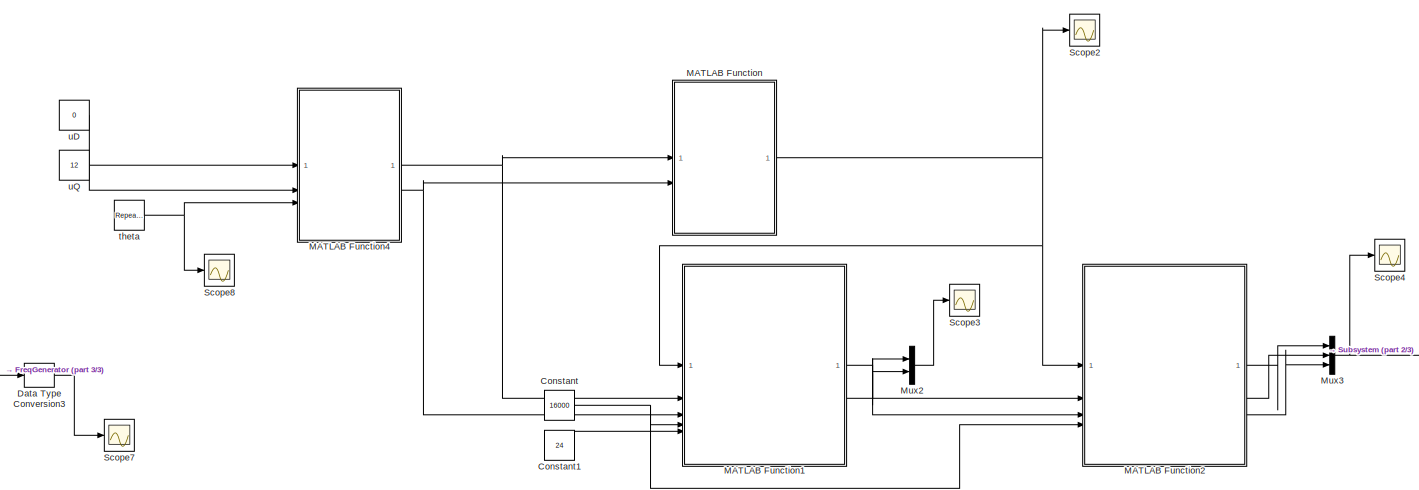
[diagram: root canvas - part 1/3, center side, full height]
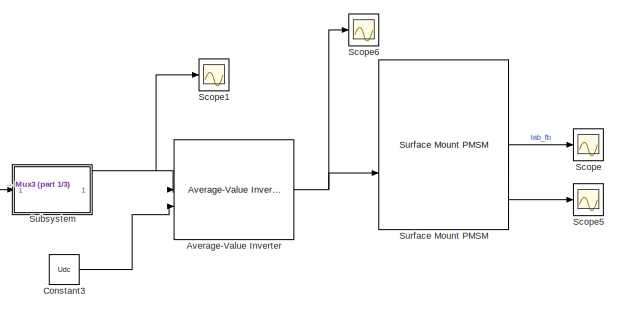
[diagram: root canvas - part 2/3, middle right region]
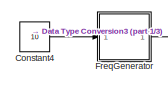
[diagram: root canvas - part 3/3, bottom left region]
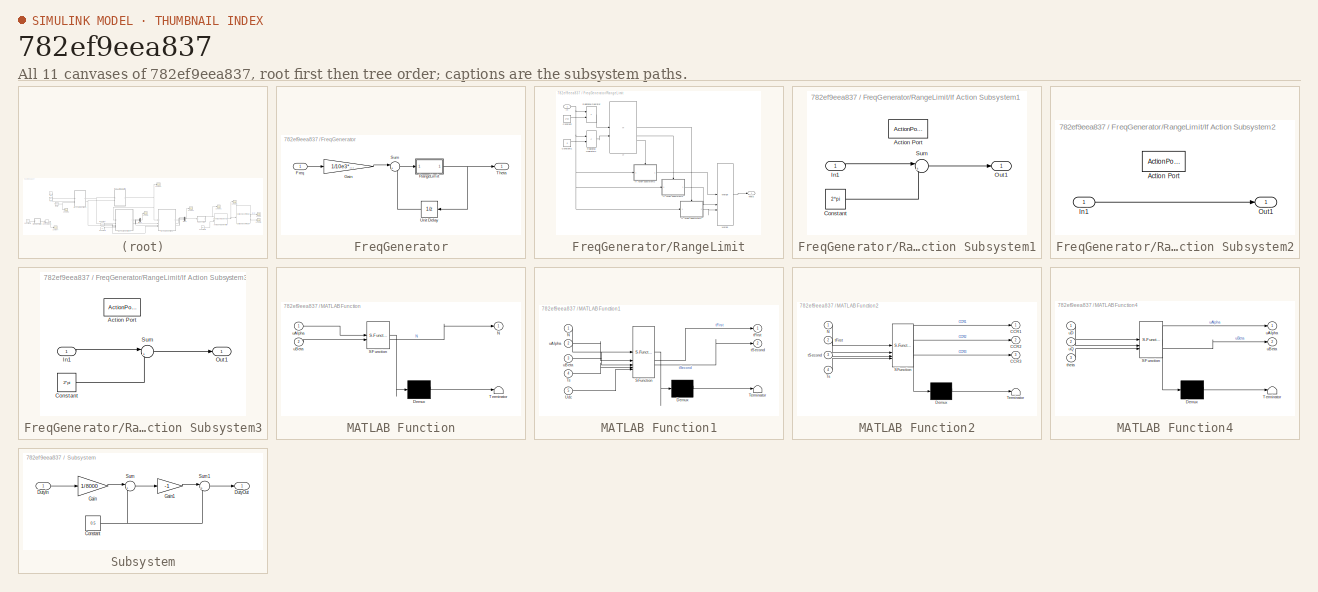
[diagram: thumbnail index - all 11 canvases of the model, root first then tree order]
MODEL slx_782ef9eea837
KIND model
CONFIG AbsTol = auto
CONFIG EnableMultiTasking = off
CONFIG FixedStep = 0.000001
CONFIG MaxStep = auto
CONFIG MinStep = auto
CONFIG RelTol = 1e-3
CONFIG SampleTimeConstraint = Unconstrained
CONFIG SolverName = FixedStepDiscrete
CONFIG StartTime = 0.0
CONFIG StopTime = 1
BLOCK [Reference] Average-Value Inverter  REF=mcbplantlib/Average-Value Inverter
  SourceBlock = mcbplantlib/Average-Value Inverter
  SourceType = Average Value Inverter
BLOCK [Constant] Constant
  Value = 16000
BLOCK [Constant] Constant1
  Value = 24
BLOCK [Constant] Constant3
  Value = Udc
BLOCK [Constant] Constant4
  OutDataTypeStr = single
  Value = 10
BLOCK [DataTypeConversion] Data Type Conversion3
  OutDataTypeStr = double
  RndMeth = Floor
  SaturateOnIntegerOverflow = off
BLOCK [SubSystem] FreqGenerator
BLOCK [Inport] FreqGenerator/Freq
BLOCK [Gain] FreqGenerator/Gain
  Gain = 1/10e3*2*pi
  OutDataTypeStr = single
BLOCK [SubSystem] FreqGenerator/RangeLimit
BLOCK [Constant] FreqGenerator/RangeLimit/Constant
  OutDataTypeStr = single
  SampleTime = -1
  Value = 2*pi
BLOCK [Constant] FreqGenerator/RangeLimit/Constant1
  OutDataTypeStr = single
  SampleTime = -1
  Value = 0
BLOCK [If] FreqGenerator/RangeLimit/If
  ElseIfExpressions = u2
  IfExpression = u1
  NumInputs = 2
BLOCK [SubSystem] FreqGenerator/RangeLimit/If Action Subsystem1
  TreatAsAtomicUnit = on
BLOCK [ActionPort] FreqGenerator/RangeLimit/If Action Subsystem1/Action Port
  ActionPortLabel = if(u1)
BLOCK [Constant] FreqGenerator/RangeLimit/If Action Subsystem1/Constant
  OutDataTypeStr = single
  SampleTime = -1
  Value = 2*pi
BLOCK [Inport] FreqGenerator/RangeLimit/If Action Subsystem1/In1
BLOCK [Outport] FreqGenerator/RangeLimit/If Action Subsystem1/Out1
BLOCK [Sum] FreqGenerator/RangeLimit/If Action Subsystem1/Sum
  Inputs = |+-
BLOCK [SubSystem] FreqGenerator/RangeLimit/If Action Subsystem2
  TreatAsAtomicUnit = on
BLOCK [ActionPort] FreqGenerator/RangeLimit/If Action Subsystem2/Action Port
  ActionPortLabel = else
BLOCK [Inport] FreqGenerator/RangeLimit/If Action Subsystem2/In1
BLOCK [Outport] FreqGenerator/RangeLimit/If Action Subsystem2/Out1
BLOCK [SubSystem] FreqGenerator/RangeLimit/If Action Subsystem3
  TreatAsAtomicUnit = on
BLOCK [ActionPort] FreqGenerator/RangeLimit/If Action Subsystem3/Action Port
  ActionPortLabel = elseif(u2)
BLOCK [Constant] FreqGenerator/RangeLimit/If Action Subsystem3/Constant
  OutDataTypeStr = single
  SampleTime = -1
  Value = 2*pi
BLOCK [Inport] FreqGenerator/RangeLimit/If Action Subsystem3/In1
BLOCK [Outport] FreqGenerator/RangeLimit/If Action Subsystem3/Out1
BLOCK [Sum] FreqGenerator/RangeLimit/If Action Subsystem3/Sum
  Inputs = |++
BLOCK [Inport] FreqGenerator/RangeLimit/In
BLOCK [Merge] FreqGenerator/RangeLimit/Merge
  Inputs = 3
BLOCK [RelationalOperator] FreqGenerator/RangeLimit/Relational Operator
  InputSameDT = off
  Operator = >
  OutDataTypeStr = boolean
  RndMeth = Simplest
BLOCK [RelationalOperator] FreqGenerator/RangeLimit/Relational Operator1
  InputSameDT = off
  Operator = <
  OutDataTypeStr = boolean
  RndMeth = Simplest
BLOCK [Outport] FreqGenerator/RangeLimit/Theta
BLOCK [Sum] FreqGenerator/Sum
  Inputs = |++
  OutDataTypeStr = Inherit: Same as first input
BLOCK [Outport] FreqGenerator/Theta
BLOCK [UnitDelay] FreqGenerator/Unit Delay
  HasFrameUpgradeWarning = on
  NameLocation = top
  SampleTime = -1
BLOCK [SubSystem] MATLAB Function
  ErrorFcn = Stateflow.Translate.translate
  PermitHierarchicalResolution = ExplicitOnly
  SFBlockType = MATLAB Function
  TreatAsAtomicUnit = on
BLOCK [Demux] MATLAB Function/ Demux 
  Outputs = 1
BLOCK [S-Function] MATLAB Function/ SFunction 
  EnableBusSupport = on
  FunctionName = sf_sfun
  PortCounts = [2 2]
  SFcnIsStateOwnerBlock = off
  SFunctionDeploymentMode = off
  Tag = Stateflow S-Function 2
BLOCK [Terminator] MATLAB Function/ Terminator 
BLOCK [Outport] MATLAB Function/N
BLOCK [Inport] MATLAB Function/uAlpha
BLOCK [Inport] MATLAB Function/uBeta
  Port = 2
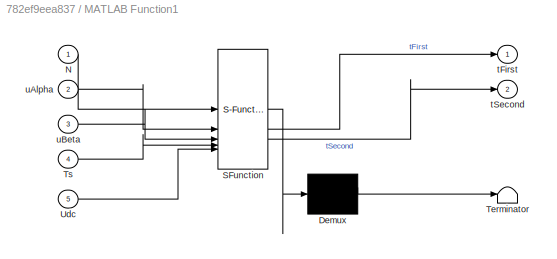
BLOCK [SubSystem] MATLAB Function1
  ErrorFcn = Stateflow.Translate.translate
  PermitHierarchicalResolution = ExplicitOnly
  SFBlockType = MATLAB Function
  TreatAsAtomicUnit = on
BLOCK [Demux] MATLAB Function1/ Demux 
  Outputs = 1
BLOCK [S-Function] MATLAB Function1/ SFunction 
  EnableBusSupport = on
  FunctionName = sf_sfun
  PortCounts = [5 3]
  SFcnIsStateOwnerBlock = off
  SFunctionDeploymentMode = off
  Tag = Stateflow S-Function 1
BLOCK [Terminator] MATLAB Function1/ Terminator 
BLOCK [Inport] MATLAB Function1/N
BLOCK [Inport] MATLAB Function1/Ts
  Port = 4
BLOCK [Inport] MATLAB Function1/Udc
  Port = 5
BLOCK [Outport] MATLAB Function1/tFirst
BLOCK [Outport] MATLAB Function1/tSecond
  Port = 2
BLOCK [Inport] MATLAB Function1/uAlpha
  Port = 2
BLOCK [Inport] MATLAB Function1/uBeta
  Port = 3
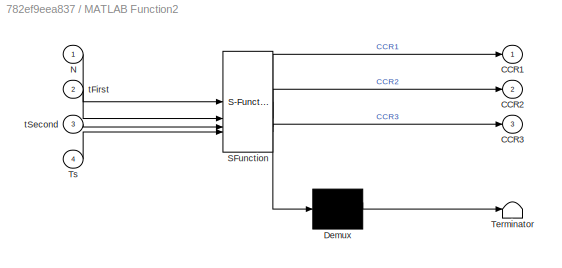
BLOCK [SubSystem] MATLAB Function2
  ErrorFcn = Stateflow.Translate.translate
  PermitHierarchicalResolution = ExplicitOnly
  SFBlockType = MATLAB Function
  TreatAsAtomicUnit = on
BLOCK [Demux] MATLAB Function2/ Demux 
  Outputs = 1
BLOCK [S-Function] MATLAB Function2/ SFunction 
  EnableBusSupport = on
  FunctionName = sf_sfun
  PortCounts = [4 4]
  SFcnIsStateOwnerBlock = off
  SFunctionDeploymentMode = off
  Tag = Stateflow S-Function 3
BLOCK [Terminator] MATLAB Function2/ Terminator 
BLOCK [Outport] MATLAB Function2/CCR1
BLOCK [Outport] MATLAB Function2/CCR2
  Port = 2
BLOCK [Outport] MATLAB Function2/CCR3
  Port = 3
BLOCK [Inport] MATLAB Function2/N
BLOCK [Inport] MATLAB Function2/Ts
  Port = 4
BLOCK [Inport] MATLAB Function2/tFirst
  Port = 2
BLOCK [Inport] MATLAB Function2/tSecond
  Port = 3
BLOCK [SubSystem] MATLAB Function4
  ErrorFcn = Stateflow.Translate.translate
  PermitHierarchicalResolution = ExplicitOnly
  SFBlockType = MATLAB Function
  TreatAsAtomicUnit = on
BLOCK [Demux] MATLAB Function4/ Demux 
  Outputs = 1
BLOCK [S-Function] MATLAB Function4/ SFunction 
  EnableBusSupport = on
  FunctionName = sf_sfun
  PortCounts = [3 3]
  SFcnIsStateOwnerBlock = off
  SFunctionDeploymentMode = off
  Tag = Stateflow S-Function 5
BLOCK [Terminator] MATLAB Function4/ Terminator 
BLOCK [Inport] MATLAB Function4/theta
  Port = 3
BLOCK [Outport] MATLAB Function4/uAlpha
BLOCK [Outport] MATLAB Function4/uBeta
  Port = 2
BLOCK [Inport] MATLAB Function4/uD
BLOCK [Inport] MATLAB Function4/uQ
  Port = 2
BLOCK [Mux] Mux2
  DisplayOption = bar
  Inputs = 2
BLOCK [Mux] Mux3
  DisplayOption = bar
  Inputs = 3
BLOCK [Scope] Scope
  Floating = off
  NumInputPorts = 1
  ScopeSpecificationString = Simulink.scopes.TimeScopeBlockCfg('CurrentConfiguration', extmgr.ConfigurationSet(extmgr.Configuration('Core','General UI',true),extmgr.Configuration('Core','Source UI',true),extmgr.Configuration('Sources','WiredSimulink',true,'DataLoggingVariableName','ScopeData2'),extmgr.Configuration('Visuals','Time Domain',true,'SerializedDisplays',{struct('MinYLimReal','-2.3164','MaxYLimReal','2.28591','YLabe...<+1814ch>
BLOCK [Scope] Scope1
  Floating = off
  NumInputPorts = 1
  ScopeSpecificationString = Simulink.scopes.TimeScopeBlockCfg('CurrentConfiguration', extmgr.ConfigurationSet(extmgr.Configuration('Core','General UI',true),extmgr.Configuration('Core','Source UI',true),extmgr.Configuration('Sources','WiredSimulink',true,'DataLoggingVariableName','ScopeData1'),extmgr.Configuration('Visuals','Time Domain',true,'SerializedDisplays',{struct('MinYLimReal','-0.125','MaxYLimReal','1.125','YLabelRe...<+1459ch>
BLOCK [Scope] Scope2
  Floating = off
  NumInputPorts = 1
  ScopeSpecificationString = Simulink.scopes.TimeScopeBlockCfg('CurrentConfiguration', extmgr.ConfigurationSet(extmgr.Configuration('Core','General UI',true),extmgr.Configuration('Core','Source UI',true),extmgr.Configuration('Sources','WiredSimulink',true,'DataLoggingVariableName','ScopeData2'),extmgr.Configuration('Visuals','Time Domain',true,'SerializedDisplays',{struct('MinYLimReal','0.375','MaxYLimReal','6.625','YLabelRea...<+1411ch>
BLOCK [Scope] Scope3
  Floating = off
  NumInputPorts = 1
  ScopeSpecificationString = Simulink.scopes.TimeScopeBlockCfg('CurrentConfiguration', extmgr.ConfigurationSet(extmgr.Configuration('Core','General UI',true),extmgr.Configuration('Core','Source UI',true),extmgr.Configuration('Sources','WiredSimulink',true,'DataLoggingVariableName','ScopeData3'),extmgr.Configuration('Visuals','Time Domain',true,'SerializedDisplays',{struct('MinYLimReal','-1500.00000','MaxYLimReal','13500.00000...<+1462ch>
BLOCK [Scope] Scope4
  Floating = off
  NumInputPorts = 1
  ScopeSpecificationString = Simulink.scopes.TimeScopeBlockCfg('CurrentConfiguration', extmgr.ConfigurationSet(extmgr.Configuration('Core','General UI',true),extmgr.Configuration('Core','Source UI',true),extmgr.Configuration('Sources','WiredSimulink',true,'DataLoggingVariableName','ScopeData1'),extmgr.Configuration('Visuals','Time Domain',true,'SerializedDisplays',{struct('MinYLimReal','-330.12702','MaxYLimReal','8330.12702',...<+1522ch>
BLOCK [Scope] Scope5
  Floating = off
  NumInputPorts = 1
  ScopeSpecificationString = Simulink.scopes.TimeScopeBlockCfg('CurrentConfiguration', extmgr.ConfigurationSet(extmgr.Configuration('Core','General UI',true),extmgr.Configuration('Core','Source UI',true),extmgr.Configuration('Sources','WiredSimulink',true,'DataLoggingVariableName','ScopeData3'),extmgr.Configuration('Visuals','Time Domain',true,'SerializedDisplays',{struct('MinYLimReal','-36.01675','MaxYLimReal','35.73936','YL...<+1437ch>
BLOCK [Scope] Scope6
  Floating = off
  NumInputPorts = 1
  ScopeSpecificationString = Simulink.scopes.TimeScopeBlockCfg('CurrentConfiguration', extmgr.ConfigurationSet(extmgr.Configuration('Core','General UI',true),extmgr.Configuration('Core','Source UI',true),extmgr.Configuration('Sources','WiredSimulink',true,'DataLoggingVariableName','ScopeData4'),extmgr.Configuration('Visuals','Time Domain',true,'SerializedDisplays',{struct('MinYLimReal','-15.00000','MaxYLimReal','15.00000','YL...<+1516ch>
BLOCK [Scope] Scope7
  Floating = off
  NumInputPorts = 1
  ScopeSpecificationString = Simulink.scopes.TimeScopeBlockCfg('CurrentConfiguration', extmgr.ConfigurationSet(extmgr.Configuration('Core','General UI',true),extmgr.Configuration('Core','Source UI',true),extmgr.Configuration('Sources','WiredSimulink',true,'DataLoggingVariableName','ScopeData5'),extmgr.Configuration('Visuals','Time Domain',true,'SerializedDisplays',{struct('MinYLimReal','-0.78536','MaxYLimReal','7.06857','YLab...<+1453ch>
BLOCK [Scope] Scope8
  Floating = off
  NumInputPorts = 1
  ScopeSpecificationString = Simulink.scopes.TimeScopeBlockCfg('CurrentConfiguration', extmgr.ConfigurationSet(extmgr.Configuration('Core','General UI',true),extmgr.Configuration('Core','Source UI',true),extmgr.Configuration('Sources','WiredSimulink',true,'DataLoggingVariableName','ScopeData6'),extmgr.Configuration('Visuals','Time Domain',true,'SerializedDisplays',{struct('MinYLimReal','-0.86756','MaxYLimReal','7.80804','YLab...<+1438ch>
BLOCK [SubSystem] Subsystem
  PortSchema = {"entries":[{"content":{"sides":[{"content":{"connectorIds":["In1"]},"type":"ConnectorPlacement.EquallySpacedRectSide","uuid":"8ccc51de-fa2a-4900-80a3-4cdf9aa76f01"},{"content":{"side":"RIGHT"},"type":"ConnectorPlacement.EquallySpacedRectSide","uuid":"32c06e0d-3f1d-4948-af96-e310e54308a0"},{"content":{"connectorIds":["Out1"],"side":"TOP"},"type":"ConnectorPlacement.EquallySpacedRectSide","uuid":"a...<+222ch>
BLOCK [Constant] Subsystem/Constant
  SampleTime = -1
  Value = 0.5
BLOCK [Inport] Subsystem/DutyIn
BLOCK [Outport] Subsystem/DutyOut
BLOCK [Gain] Subsystem/Gain
  Gain = 1/8000
  ParamDataTypeStr = single
BLOCK [Gain] Subsystem/Gain1
  Gain = -1
BLOCK [Sum] Subsystem/Sum
  Inputs = |+-
BLOCK [Sum] Subsystem/Sum1
  Inputs = |++
BLOCK [Reference] Surface Mount PMSM  REF=autolibpmsmexterior/Surface Mount PMSM
  LibrarySourceBlock = mcblib/Electrical Systems/Motors/Surface Mount PMSM
  SourceBlock = autolibpmsmexterior/Surface Mount PMSM
  SourceType = Surface Mount PMSM
BLOCK [Reference] theta   REF=simulink/Sources/Repeating
Sequence
  SourceBlock = simulink/Sources/Repeating\nSequence
  SourceType = Repeating table
BLOCK [Constant] uD
  Value = 0
BLOCK [Constant] uQ
  Value = 12
NET Average-Value Inverter:1 -> Scope6:1, Surface Mount PMSM:2
LINE Constant1:1 -> MATLAB Function1:5
LINE Constant3:1 -> Average-Value Inverter:2
LINE Constant4:1 -> FreqGenerator:1
NET Constant:1 -> MATLAB Function1:4, MATLAB Function2:4
LINE Data Type Conversion3:1 -> Scope7:1
LINE FreqGenerator/Freq:1 -> FreqGenerator/Gain:1
LINE FreqGenerator/Gain:1 -> FreqGenerator/Sum:1
LINE FreqGenerator/RangeLimit/Constant1:1 -> FreqGenerator/RangeLimit/Relational Operator1:2
LINE FreqGenerator/RangeLimit/Constant:1 -> FreqGenerator/RangeLimit/Relational Operator:2
LINE FreqGenerator/RangeLimit/If Action Subsystem1/Constant:1 -> FreqGenerator/RangeLimit/If Action Subsystem1/Sum:2
LINE FreqGenerator/RangeLimit/If Action Subsystem1/In1:1 -> FreqGenerator/RangeLimit/If Action Subsystem1/Sum:1
LINE FreqGenerator/RangeLimit/If Action Subsystem1/Sum:1 -> FreqGenerator/RangeLimit/If Action Subsystem1/Out1:1
LINE FreqGenerator/RangeLimit/If Action Subsystem1:1 -> FreqGenerator/RangeLimit/Merge:3
LINE FreqGenerator/RangeLimit/If Action Subsystem2/In1:1 -> FreqGenerator/RangeLimit/If Action Subsystem2/Out1:1
LINE FreqGenerator/RangeLimit/If Action Subsystem2:1 -> FreqGenerator/RangeLimit/Merge:1
LINE FreqGenerator/RangeLimit/If Action Subsystem3/Constant:1 -> FreqGenerator/RangeLimit/If Action Subsystem3/Sum:2
LINE FreqGenerator/RangeLimit/If Action Subsystem3/In1:1 -> FreqGenerator/RangeLimit/If Action Subsystem3/Sum:1
LINE FreqGenerator/RangeLimit/If Action Subsystem3/Sum:1 -> FreqGenerator/RangeLimit/If Action Subsystem3/Out1:1
LINE FreqGenerator/RangeLimit/If Action Subsystem3:1 -> FreqGenerator/RangeLimit/Merge:2
LINE FreqGenerator/RangeLimit/If:1 -> FreqGenerator/RangeLimit/If Action Subsystem1:ifaction
LINE FreqGenerator/RangeLimit/If:2 -> FreqGenerator/RangeLimit/If Action Subsystem3:ifaction
LINE FreqGenerator/RangeLimit/If:3 -> FreqGenerator/RangeLimit/If Action Subsystem2:ifaction
NET FreqGenerator/RangeLimit/In:1 -> FreqGenerator/RangeLimit/If Action Subsystem1:1, FreqGenerator/RangeLimit/If Action Subsystem2:1, FreqGenerator/RangeLimit/If Action Subsystem3:1, FreqGenerator/RangeLimit/Relational Operator1:1, FreqGenerator/RangeLimit/Relational Operator:1
LINE FreqGenerator/RangeLimit/Merge:1 -> FreqGenerator/RangeLimit/Theta:1
LINE FreqGenerator/RangeLimit/Relational Operator1:1 -> FreqGenerator/RangeLimit/If:2
LINE FreqGenerator/RangeLimit/Relational Operator:1 -> FreqGenerator/RangeLimit/If:1
NET FreqGenerator/RangeLimit:1 -> FreqGenerator/Theta:1, FreqGenerator/Unit Delay:1
LINE FreqGenerator/Sum:1 -> FreqGenerator/RangeLimit:1
LINE FreqGenerator/Unit Delay:1 -> FreqGenerator/Sum:2
LINE FreqGenerator:1 -> Data Type Conversion3:1
NET MATLAB Function1:1 -> MATLAB Function2:2, Mux2:1
NET MATLAB Function1:2 -> MATLAB Function2:3, Mux2:2
LINE MATLAB Function2:1 -> Mux3:1
LINE MATLAB Function2:2 -> Mux3:2
LINE MATLAB Function2:3 -> Mux3:3
NET MATLAB Function4:1 -> MATLAB Function1:2, MATLAB Function:1
NET MATLAB Function4:2 -> MATLAB Function1:3, MATLAB Function:2
NET MATLAB Function:1 -> MATLAB Function1:1, MATLAB Function2:1, Scope2:1
LINE Mux2:1 -> Scope3:1
NET Mux3:1 -> Scope4:1, Subsystem:1
NET Subsystem/Constant:1 -> Subsystem/Sum1:2, Subsystem/Sum:2
LINE Subsystem/DutyIn:1 -> Subsystem/Gain:1
LINE Subsystem/Gain1:1 -> Subsystem/Sum1:1
LINE Subsystem/Gain:1 -> Subsystem/Sum:1
LINE Subsystem/Sum1:1 -> Subsystem/DutyOut:1
LINE Subsystem/Sum:1 -> Subsystem/Gain1:1
NET Subsystem:1 -> Average-Value Inverter:1, Scope1:1
LINE Surface Mount PMSM:2 -> Scope:1
LINE Surface Mount PMSM:3 -> Scope5:1
NET theta :1 -> MATLAB Function4:3, Scope8:1
LINE uD:1 -> MATLAB Function4:1
LINE uQ:1 -> MATLAB Function4:2
note: NET lines group one-source signal fan-out (src -> all destinations, sorted); 1:1 wires keep LINE
CHART MATLAB Function1 states=1 transitions=1
  STATE_LABEL 'eML_blk_kernel()'
  STATE_LABEL 'SCRIPT:\nfunction [tFirst, tSecond] = vectorCalculate(N, uAlpha, uBeta, Ts, Udc)\n\ntFirst = 0;\ntSecond = 0;\n\nX = sqrt(3)*Ts*uBeta/Udc;\nY = sqrt(3)*Ts/Udc*(sqrt(3)*uAlpha/2+uBeta/2);\nZ = sqrt(3)*Ts/Udc*(-sqrt(3)*uAlpha/2+uBeta/2);\n\nif (N == 1)\n    tFirst = Z;\n    tSecond = Y;\nend\n\nif (N==2)\n    tFirst = Y;\n    tSecond = -X;\nend\n\nif (N==3)\n    tFirst =-Z;\n    tSecond = X;\nend\n\nif (N==4)\n    tFirst =-X...<+120ch>'
CHART MATLAB Function states=1 transitions=1
  STATE_LABEL 'eML_blk_kernel()'
  STATE_LABEL 'SCRIPT:\n\nfunction N = sectorJudge(uAlpha, uBeta)\n\nu1 = uBeta;\nu2 = sqrt(3)/2*uAlpha - 1/2*uBeta;\nu3 = -sqrt(3)/2*uAlpha - 1/2*uBeta;\n\nN = 0;\nif (u1 > 0)\n    N = N+1;\nend;\n\nif (u2 > 0)\n    N = N+2;\nend;\n\nif (u3 > 0)\n    N = N+4;\nend;\n\n'
CHART MATLAB Function2 states=1 transitions=1
  STATE_LABEL 'eML_blk_kernel()'
  STATE_LABEL 'SCRIPT:\nfunction [CCR1, CCR2, CCR3] =  CCR_calculate(N, tFirst, tSecond,  Ts)\n\nCCR1 = 0;\nCCR2 = 0;\nCCR3 = 0;\n\nt = tFirst + tSecond;\nif (t > Ts)\n    tFirst = tFirst/t * Ts;\n    tSecond = tSecond / t * Ts;\nend\n\nvalue1 = (Ts - tFirst - tSecond) /4;  % vector 0 or 7 \nvalue2 = value1 + tFirst / 2;\nvalue3 = value2 + tSecond / 2;\n\nswitch(N)\n    case 3\n        CCR1 = value1;\n        CCR2 = value2;\n       ...<+425ch>'
CHART MATLAB Function4 states=1 transitions=1
  STATE_LABEL 'eML_blk_kernel()'
  STATE_LABEL 'SCRIPT:\nfunction [uAlpha, uBeta] = revPark(uD, uQ, theta)\n\n\nuAlpha = 0;\nuBeta = 0;\n\nuAlpha = cos(theta) * uD - sin(theta) *uQ;\nuBeta = sin(theta) * uD + cos(theta) * uQ;\n\n\n'
CHART  states=0 transitions=0
CHART  states=0 transitions=0
CHART  states=0 transitions=0
CHART  states=0 transitions=0
